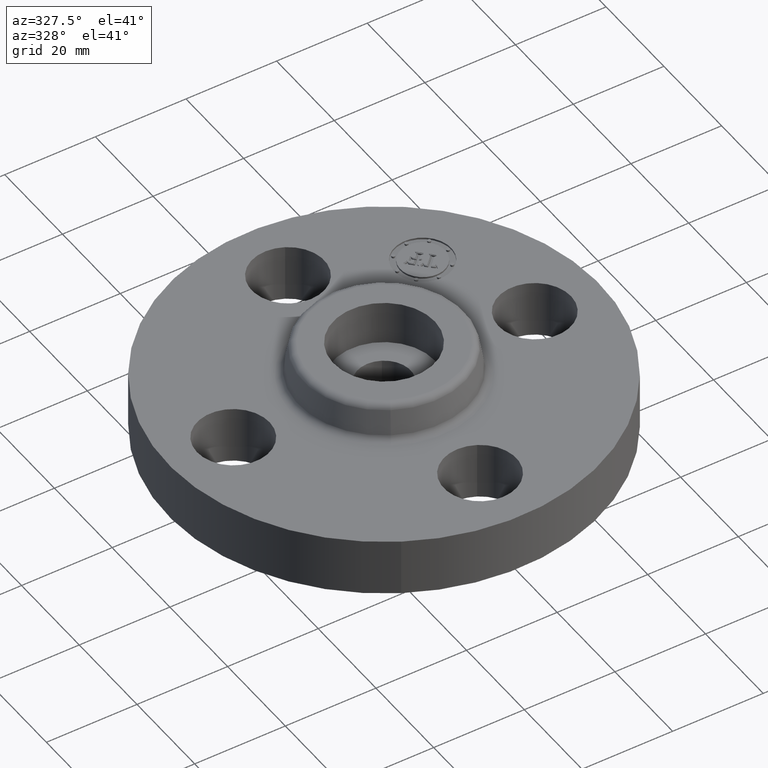
[diagram: clean part render]
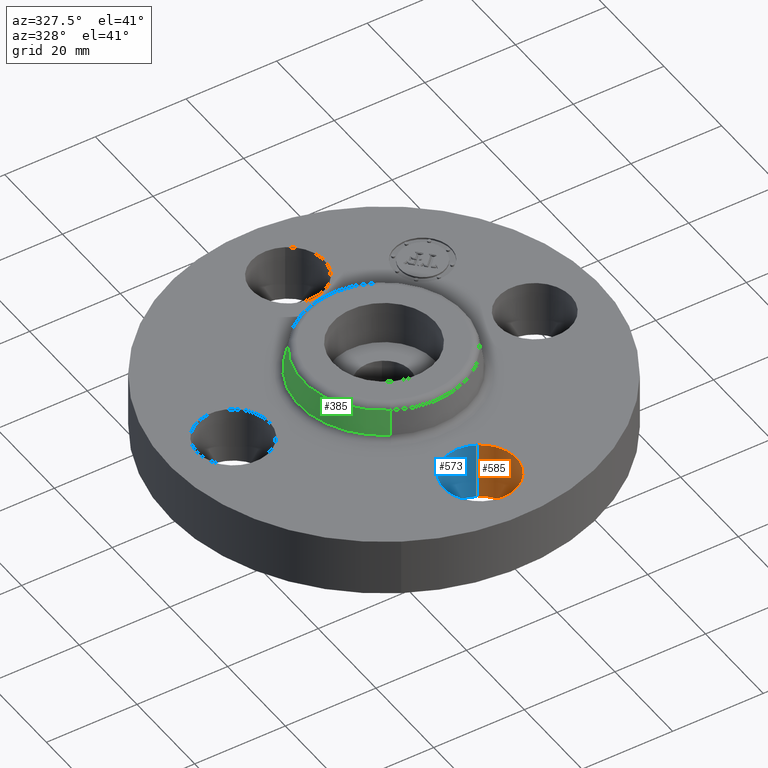
[diagram: same view with three faces highlighted in distinct colors, each labeled with its STEP entity id]
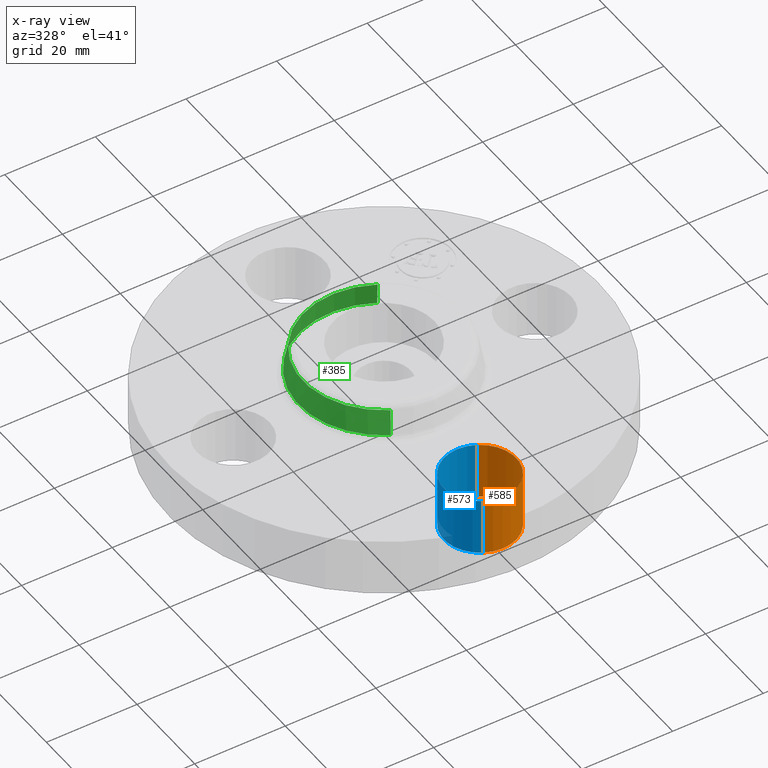
[diagram: x-ray of the same camera — body ghosted, the three highlighted faces saturated]
A machine part, auxiliary view with three faces highlighted in distinct colors.
The next image is the same camera in x-ray (body ghosted, the three faces saturated) — at least one of them is partly hidden behind the body in this view.
Their STEP definitions:

[orange] entity #585 — the highlighted cylindrical surface (partial cylindrical patch) has radius 8.001 mm, axis along (0, -0, -1).
#190=AXIS2_PLACEMENT_3D('Circle Axis2P3D',#188,#189,$) ;
#546=AXIS2_PLACEMENT_3D('Cylinder Axis2P3D',#543,#544,#545) ;
#576=AXIS2_PLACEMENT_3D('Circle Axis2P3D',#574,#575,$) ;
#188=CARTESIAN_POINT('Axis2P3D Location',(-1.04902962957E-016,-1.31000000001,0.)) ;
#192=CARTESIAN_POINT('Vertex',(0.151019044661,-1.03356149301,0.)) ;
#194=CARTESIAN_POINT('Vertex',(-0.151019044661,-1.586438507,0.)) ;
#543=CARTESIAN_POINT('Axis2P3D Location',(-1.99526869207E-016,-1.31000000001,0.496062992128)) ;
#548=CARTESIAN_POINT('Line Origine',(-0.151019044661,-1.586438507,0.250000000001)) ;
#552=CARTESIAN_POINT('Vertex',(-0.151019044661,-1.586438507,0.500000000002)) ;
#555=CARTESIAN_POINT('Line Origine',(0.151019044661,-1.03356149301,0.250000000001)) ;
#559=CARTESIAN_POINT('Vertex',(0.151019044661,-1.03356149301,0.500000000002)) ;
#574=CARTESIAN_POINT('Axis2P3D Location',(-1.99526869207E-016,-1.31000000001,0.500000000002)) ;
#189=DIRECTION('Axis2P3D Direction',(0.,0.,-0.0393700787402)) ;
#544=DIRECTION('Axis2P3D Direction',(0.,-0.,-0.0393700787402)) ;
#545=DIRECTION('Axis2P3D XDirection',(0.0188750212049,0.0345504945626,-0.)) ;
#549=DIRECTION('Vector Direction',(0.,0.,-0.0393700787402)) ;
#556=DIRECTION('Vector Direction',(0.,0.,-0.0393700787402)) ;
#575=DIRECTION('Axis2P3D Direction',(0.,-0.,-0.0393700787402)) ;
#550=VECTOR('Line Direction',#549,0.0393700787402) ;
#557=VECTOR('Line Direction',#556,0.0393700787402) ;
#580=ORIENTED_EDGE('',*,*,#561,.F.) ;
#581=ORIENTED_EDGE('',*,*,#196,.T.) ;
#582=ORIENTED_EDGE('',*,*,#554,.T.) ;
#583=ORIENTED_EDGE('',*,*,#578,.F.) ;
#585=ADVANCED_FACE('PartBody',(#584),#547,.F.) ;
#191=CIRCLE('generated circle',#190,0.315000000001) ;
#577=CIRCLE('generated circle',#576,0.315000000001) ;
#547=CYLINDRICAL_SURFACE('generated cylinder',#546,0.315000000001) ;
#196=EDGE_CURVE('',#193,#195,#191,.T.) ;
#554=EDGE_CURVE('',#195,#553,#551,.F.) ;
#561=EDGE_CURVE('',#193,#560,#558,.F.) ;
#578=EDGE_CURVE('',#560,#553,#577,.T.) ;
#579=EDGE_LOOP('',(#580,#581,#582,#583)) ;
#584=FACE_OUTER_BOUND('',#579,.T.) ;
#551=LINE('Line',#548,#550) ;
#558=LINE('Line',#555,#557) ;
#193=VERTEX_POINT('',#192) ;
#195=VERTEX_POINT('',#194) ;
#553=VERTEX_POINT('',#552) ;
#560=VERTEX_POINT('',#559) ;

[blue] entity #573 — the highlighted cylindrical surface (partial cylindrical patch) has radius 8.001 mm, axis along (0, -0, -1).
#199=AXIS2_PLACEMENT_3D('Circle Axis2P3D',#197,#198,$) ;
#546=AXIS2_PLACEMENT_3D('Cylinder Axis2P3D',#543,#544,#545) ;
#564=AXIS2_PLACEMENT_3D('Circle Axis2P3D',#562,#563,$) ;
#192=CARTESIAN_POINT('Vertex',(0.151019044661,-1.03356149301,0.)) ;
#194=CARTESIAN_POINT('Vertex',(-0.151019044661,-1.586438507,0.)) ;
#197=CARTESIAN_POINT('Axis2P3D Location',(-1.74838271595E-016,-1.31000000001,0.)) ;
#543=CARTESIAN_POINT('Axis2P3D Location',(-1.99526869207E-016,-1.31000000001,0.496062992128)) ;
#548=CARTESIAN_POINT('Line Origine',(-0.151019044661,-1.586438507,0.250000000001)) ;
#552=CARTESIAN_POINT('Vertex',(-0.151019044661,-1.586438507,0.500000000002)) ;
#555=CARTESIAN_POINT('Line Origine',(0.151019044661,-1.03356149301,0.250000000001)) ;
#559=CARTESIAN_POINT('Vertex',(0.151019044661,-1.03356149301,0.500000000002)) ;
#562=CARTESIAN_POINT('Axis2P3D Location',(-1.99526869207E-016,-1.31000000001,0.500000000002)) ;
#198=DIRECTION('Axis2P3D Direction',(0.,0.,-0.0393700787402)) ;
#544=DIRECTION('Axis2P3D Direction',(0.,-0.,-0.0393700787402)) ;
#545=DIRECTION('Axis2P3D XDirection',(0.0188750212049,0.0345504945626,-0.)) ;
#549=DIRECTION('Vector Direction',(0.,0.,-0.0393700787402)) ;
#556=DIRECTION('Vector Direction',(0.,0.,-0.0393700787402)) ;
#563=DIRECTION('Axis2P3D Direction',(0.,-0.,-0.0393700787402)) ;
#550=VECTOR('Line Direction',#549,0.0393700787402) ;
#557=VECTOR('Line Direction',#556,0.0393700787402) ;
#568=ORIENTED_EDGE('',*,*,#554,.F.) ;
#569=ORIENTED_EDGE('',*,*,#201,.T.) ;
#570=ORIENTED_EDGE('',*,*,#561,.T.) ;
#571=ORIENTED_EDGE('',*,*,#566,.F.) ;
#573=ADVANCED_FACE('PartBody',(#572),#547,.F.) ;
#200=CIRCLE('generated circle',#199,0.315000000001) ;
#565=CIRCLE('generated circle',#564,0.315000000001) ;
#547=CYLINDRICAL_SURFACE('generated cylinder',#546,0.315000000001) ;
#201=EDGE_CURVE('',#195,#193,#200,.T.) ;
#554=EDGE_CURVE('',#195,#553,#551,.F.) ;
#561=EDGE_CURVE('',#193,#560,#558,.F.) ;
#566=EDGE_CURVE('',#553,#560,#565,.T.) ;
#567=EDGE_LOOP('',(#568,#569,#570,#571)) ;
#572=FACE_OUTER_BOUND('',#567,.T.) ;
#551=LINE('Line',#548,#550) ;
#558=LINE('Line',#555,#557) ;
#193=VERTEX_POINT('',#192) ;
#195=VERTEX_POINT('',#194) ;
#553=VERTEX_POINT('',#552) ;
#560=VERTEX_POINT('',#559) ;

[green] entity #385 — the highlighted conical surface has half-angle 10 deg.
#333=AXIS2_PLACEMENT_3D('Circle Axis2P3D',#331,#332,$) ;
#346=AXIS2_PLACEMENT_3D('Cone Axis2P3D',#343,#344,#345) ;
#376=AXIS2_PLACEMENT_3D('Circle Axis2P3D',#374,#375,$) ;
#304=CARTESIAN_POINT('Vertex',(0.355377782267,0.650514667009,0.549581109342)) ;
#311=CARTESIAN_POINT('Vertex',(-0.355377782267,-0.650514667009,0.549581109342)) ;
#331=CARTESIAN_POINT('Axis2P3D Location',(0.,0.,0.549581109342)) ;
#343=CARTESIAN_POINT('Axis2P3D Location',(0.,0.,0.760418890663)) ;
#348=CARTESIAN_POINT('Line Origine',(0.346466127012,0.634201991484,0.655000000003)) ;
#352=CARTESIAN_POINT('Vertex',(0.337554471756,0.617889315958,0.760418890663)) ;
#359=CARTESIAN_POINT('Vertex',(-0.337554471756,-0.617889315958,0.760418890663)) ;
#362=CARTESIAN_POINT('Line Origine',(-0.346466127012,-0.634201991484,0.655000000003)) ;
#374=CARTESIAN_POINT('Axis2P3D Location',(0.,0.,0.760418890663)) ;
#332=DIRECTION('Axis2P3D Direction',(0.,0.,-0.0393700787402)) ;
#344=DIRECTION('Axis2P3D Direction',(0.,0.,-0.0393700787402)) ;
#345=DIRECTION('Axis2P3D XDirection',(-0.0188750212049,-0.0345504945626,0.)) ;
#349=DIRECTION('Vector Direction',(0.00327761303565,0.00599963041829,-0.03877195878)) ;
#363=DIRECTION('Vector Direction',(-0.00327761303565,-0.00599963041829,-0.03877195878)) ;
#375=DIRECTION('Axis2P3D Direction',(0.,0.,-0.0393700787402)) ;
#350=VECTOR('Line Direction',#349,0.0393700787402) ;
#364=VECTOR('Line Direction',#363,0.0393700787402) ;
#380=ORIENTED_EDGE('',*,*,#335,.F.) ;
#381=ORIENTED_EDGE('',*,*,#366,.T.) ;
#382=ORIENTED_EDGE('',*,*,#378,.T.) ;
#383=ORIENTED_EDGE('',*,*,#354,.F.) ;
#385=ADVANCED_FACE('PartBody',(#384),#347,.T.) ;
#334=CIRCLE('generated circle',#333,0.741257512693) ;
#377=CIRCLE('generated circle',#376,0.704081123293) ;
#347=CONICAL_SURFACE('Cone',#346,0.704081123293,0.174532925199) ;
#335=EDGE_CURVE('',#312,#305,#334,.T.) ;
#354=EDGE_CURVE('',#305,#353,#351,.F.) ;
#366=EDGE_CURVE('',#312,#360,#365,.F.) ;
#378=EDGE_CURVE('',#360,#353,#377,.T.) ;
#379=EDGE_LOOP('',(#380,#381,#382,#383)) ;
#384=FACE_OUTER_BOUND('',#379,.T.) ;
#351=LINE('Line',#348,#350) ;
#365=LINE('Line',#362,#364) ;
#305=VERTEX_POINT('',#304) ;
#312=VERTEX_POINT('',#311) ;
#353=VERTEX_POINT('',#352) ;
#360=VERTEX_POINT('',#359) ;